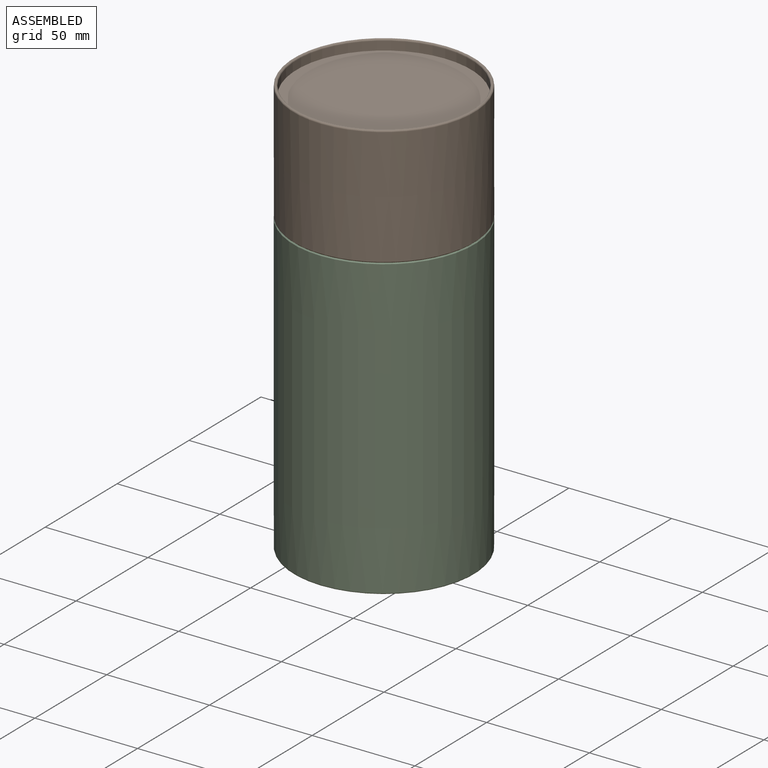
[diagram: assembled view]
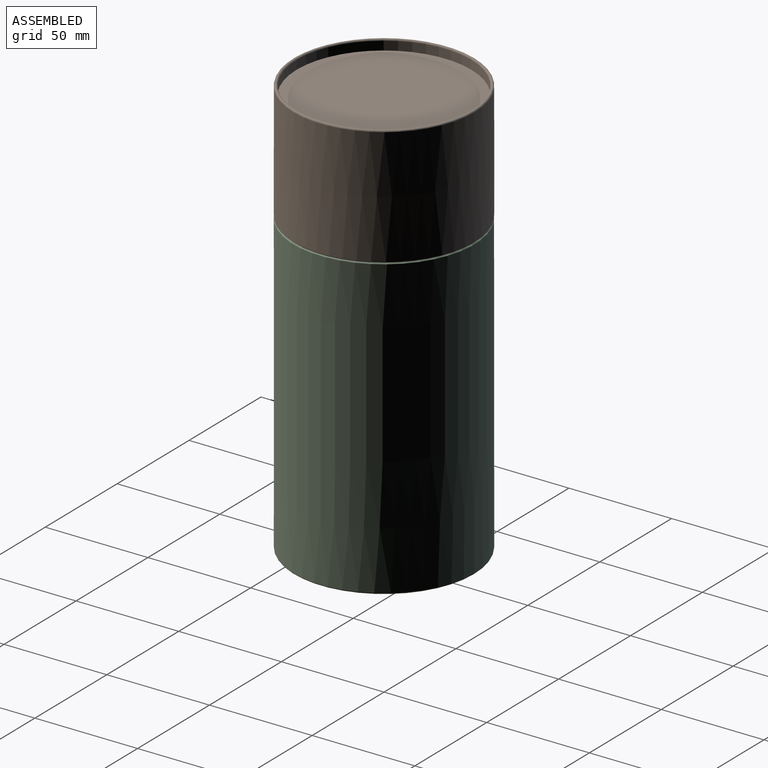
[diagram: assembled view, second angle]
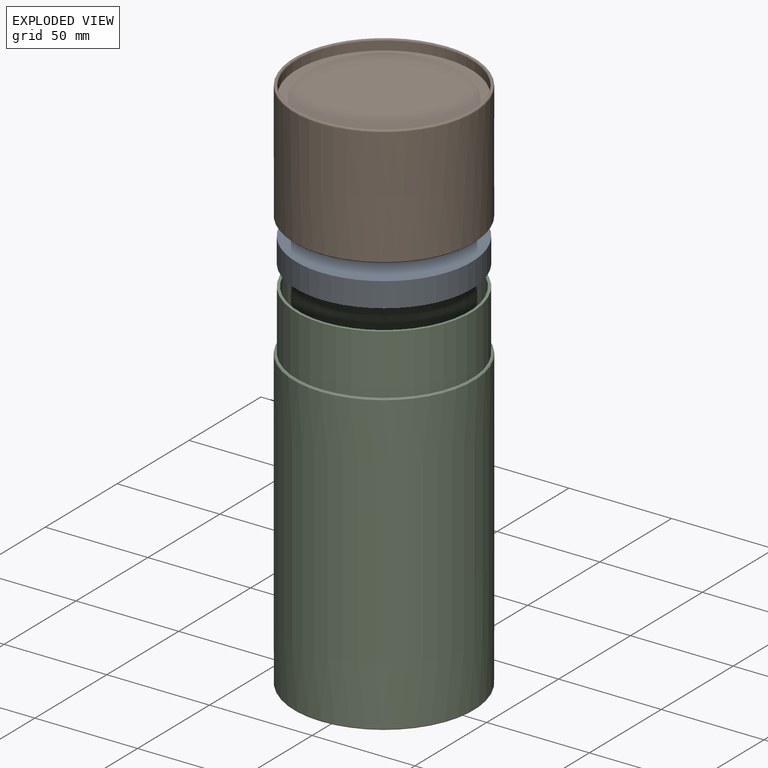
[diagram: exploded view]
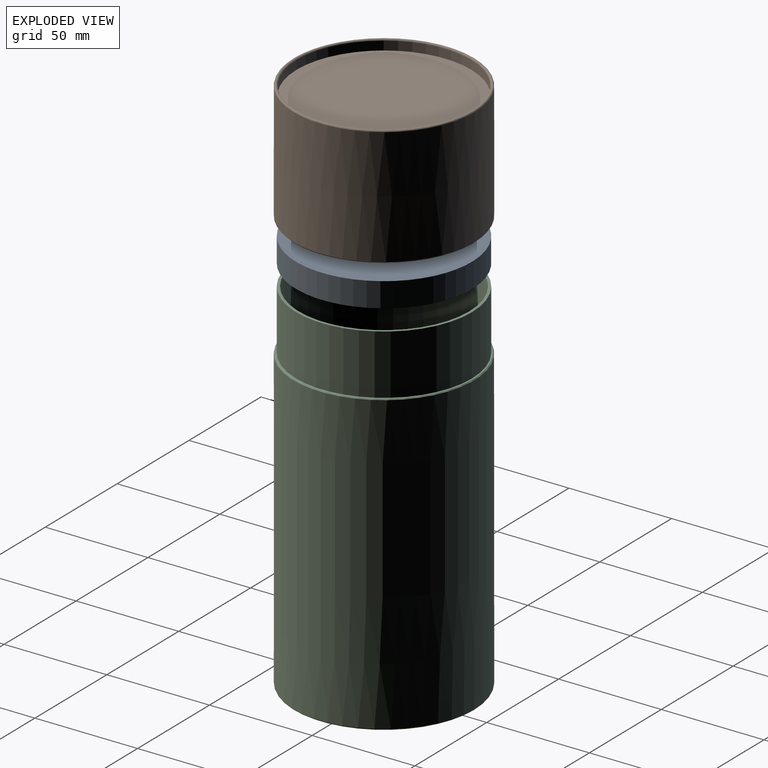
[diagram: exploded view, second angle]
ASSEMBLY  parts=3 mates=2
PART A: 5 faces, bbox 85.6x85.6x12 mm
  f0: cylinder r=12.5mm len=25mm, axis (0,0,1), area 356.2mm2, adj f3,f4
  f1: cylinder r=42.8mm len=85.6mm, axis (0,0,1), area 3227mm2, adj f2,f3
  f2: plane 85.6x85.6mm, normal (0,0,-1), area 5094.4mm2, adj f1,f4
  f3: plane 85.6x85.6mm, normal (0,0,1), area 5264mm2, adj f0,f1
  f4: cone r=12.5mm half-angle=15deg, axis (0,0,-1), area 655.5mm2, adj f0,f2
PART B: 9 faces, bbox 95.3x95.3x58.3 mm
  f0: torus R=43.25mm, axis (0,0,1), area 640.3mm2, adj f3,f4
  f1: cylinder r=44mm len=88mm, axis (0,0,1), area 7926.5mm2, adj f3,f8
  f2: plane 87x87mm, normal (0,0,-1), area 189.8mm2, adj f7,f8
  f3: cylinder r=44mm len=88mm, axis (0,0,1), area 7857.4mm2, adj f0,f1
  f4: cylinder r=42.5mm len=85mm, axis (0,0,1), area 1134.9mm2, adj f0,f5
  f5: plane 85x85mm, normal (0,0,1), area 5674.5mm2, adj f4
  f6: plane 85.6x85.6mm, normal (0,0,-1), area 5754.9mm2, adj f7
  f7: cylinder r=42.8mm len=85.6mm, axis (0,0,1), area 13807.1mm2, adj f2,f6
  f8: cone r=44mm half-angle=45deg, axis (0,0,1), area 194.4mm2, adj f1,f2
PART C: 14 faces, bbox 95.3x95.3x175 mm
  f0: torus R=43.25mm, axis (0,0,-1), area 640.3mm2, adj f1,f10
  f1: cylinder r=44mm len=88mm, axis (0,0,-1), area 7857.4mm2, adj f0,f2
  f2: cylinder r=44mm len=88mm, axis (0,0,-1), area 8064.7mm2, adj f1,f3
  f3: cylinder r=44mm len=88mm, axis (0,0,-1), area 8064.7mm2, adj f2,f4
  f4: cylinder r=44mm len=88mm, axis (0,0,-1), area 8064.7mm2, adj f3,f9
  f5: cylinder r=41.5mm len=168.03mm, axis (0,0,-1), area 43813.8mm2, adj f6,f12
  f6: plane 85.6x85.6mm, normal (0,0,1), area 344.3mm2, adj f5,f7
  f7: cylinder r=42.8mm len=85.6mm, axis (0,0,-1), area 7844.8mm2, adj f6,f8
  f8: plane 87x87mm, normal (0,0,1), area 189.8mm2, adj f7,f13
  f9: cylinder r=44mm len=88mm, axis (0,0,-1), area 7926.5mm2, adj f4,f13
  f10: cylinder r=42.5mm len=85mm, axis (0,0,-1), area 1134.9mm2, adj f0,f11
  f11: plane 85x85mm, normal (0,0,-1), area 5674.5mm2, adj f10
  f12: plane 83x83mm, normal (0,0,1), area 5410.6mm2, adj f5
  f13: cone r=44mm half-angle=45deg, axis (0,0,-1), area 194.4mm2, adj f8,f9
PLACE A rot(axis=(0,0,-1),90deg) t=(0,0,0)mm
PLACE B rot(axis=(0,0,1),0deg) t=(0,0,0)mm
PLACE C at identity fixed
MATE fastened A.f1 <-> B.f0  axis (0,0,1) through (0,0,197.2)mm
MATE cylindrical C.f0 <-> B.f0  axis (0,0,1) through (0,0,145.86)mm
